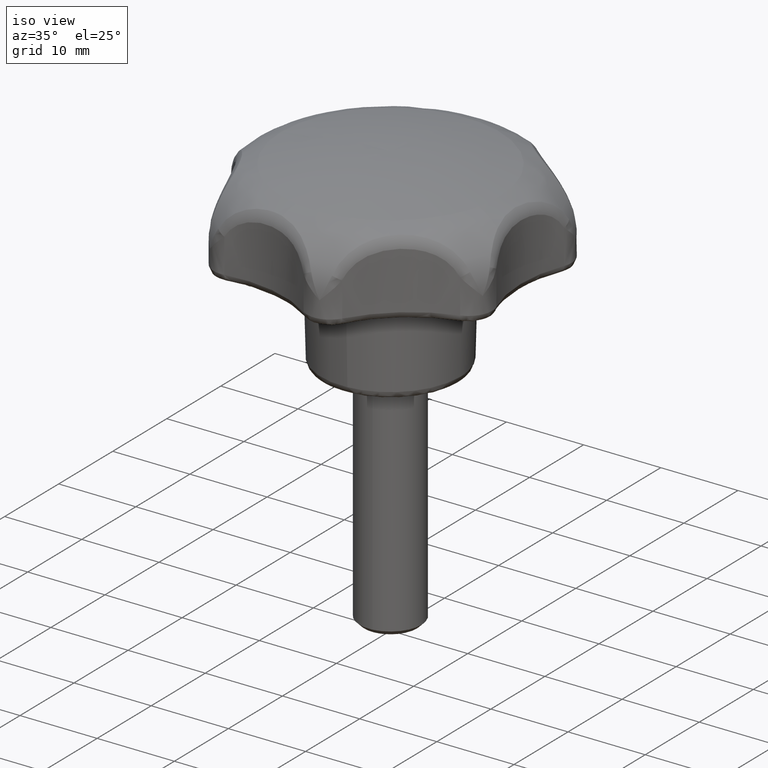
[diagram: clean part render]
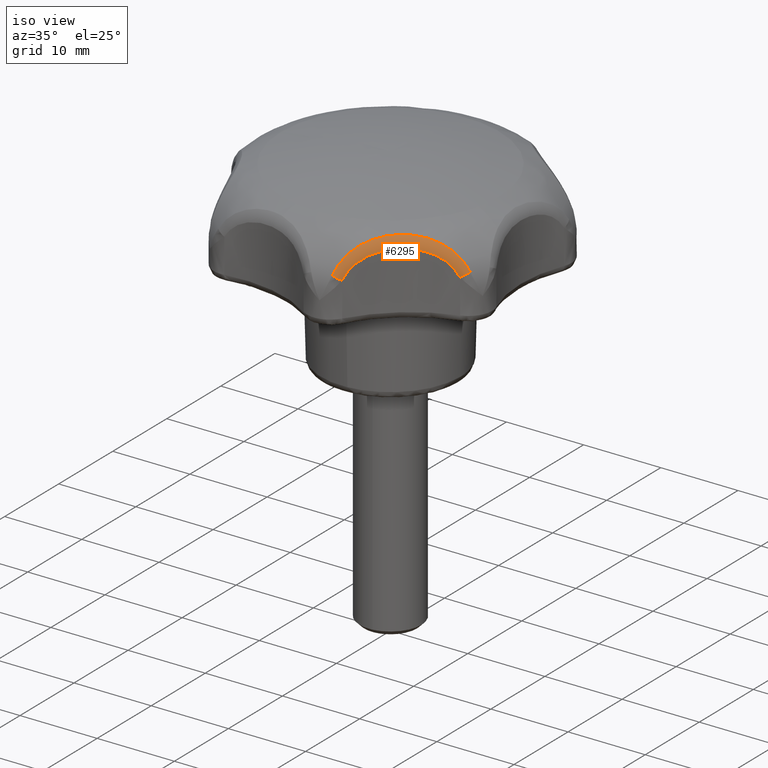
[diagram: same view with one face highlighted and labeled with its STEP entity id]
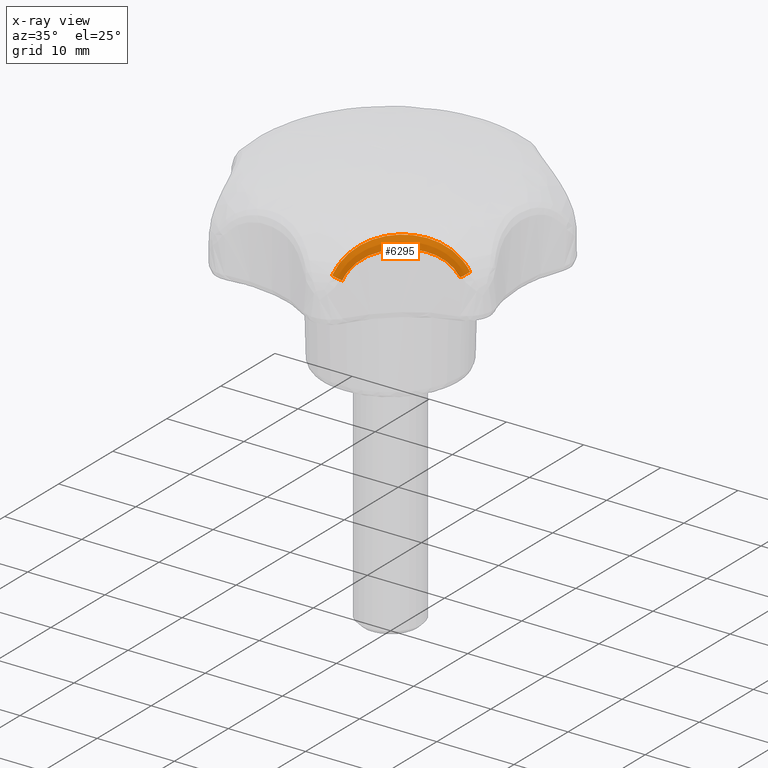
[diagram: x-ray of the same camera — body ghosted, the highlighted face saturated]
A machine part, iso view. The second image highlights one B-rep face of the part: STEP entity #6295.
The next image is the same camera in x-ray: the body ghosted, the highlighted face saturated — about 0% of this face is hidden behind the body in this view.
In plain terms, the highlighted face is a freeform B-spline surface patch.
Its self-contained STEP definition (entity closure, byte-faithful):
#2255=CARTESIAN_POINT('',(5.475528950280280,-18.650227260420351,19.019535067539351));
#2256=VERTEX_POINT('',#2255);
#2276=CARTESIAN_POINT('',(16.964206244606348,-9.488312651027531,19.019536550120652));
#2277=VERTEX_POINT('',#2276);
#2278=CARTESIAN_POINT('',(5.475528950280280,-18.650227260420351,19.019535067539351));
#2279=CARTESIAN_POINT('',(5.553764368837355,-18.486367246193801,19.348598608730040));
#2280=CARTESIAN_POINT('',(5.645782987676067,-18.298527507510659,19.655301316713281));
#2281=CARTESIAN_POINT('',(5.806042949582052,-17.985451188917072,20.084583846060330));
#2282=CARTESIAN_POINT('',(5.863190624353697,-17.875843733898989,20.222520132009510));
#2283=CARTESIAN_POINT('',(5.954892362057599,-17.703943294996620,20.421819700926068));
#2284=CARTESIAN_POINT('',(5.986457630201150,-17.645393901603128,20.486984178750721));
#2285=CARTESIAN_POINT('',(6.051665254439676,-17.525850036928119,20.614784092157048));
#2286=CARTESIAN_POINT('',(6.085376495384684,-17.464732549285859,20.677539449137619));
#2287=CARTESIAN_POINT('',(6.258517511463269,-17.154650802851510,20.983529884550340));
#2288=CARTESIAN_POINT('',(6.410375038517116,-16.894486155751260,21.201532610416130));
#2289=CARTESIAN_POINT('',(6.659961517573313,-16.490910846522912,21.493273388846550));
#2290=CARTESIAN_POINT('',(6.746802500416457,-16.354152129686941,21.584617130383059));
#2291=CARTESIAN_POINT('',(6.882862325939552,-16.146195980481370,21.713213501154360));
#2292=CARTESIAN_POINT('',(6.929182731350588,-16.076407304135270,21.754674781924241));
#2293=CARTESIAN_POINT('',(7.023821919152435,-15.935976477155471,21.834851200597861));
#2294=CARTESIAN_POINT('',(7.072039160591609,-15.865489199285220,21.873472534174599));
#2295=CARTESIAN_POINT('',(7.316362197867349,-15.513831292957960,22.058557628312069));
#2296=CARTESIAN_POINT('',(7.523381252451058,-15.233187798347791,22.182154045349790));
#2297=CARTESIAN_POINT('',(7.962360146367631,-14.677811323559240,22.388961330986859));
#2298=CARTESIAN_POINT('',(8.194322771701996,-14.403073386781850,22.472151980560501));
#2299=CARTESIAN_POINT('',(8.562850431148913,-13.998396926638620,22.570745749911751));
#2300=CARTESIAN_POINT('',(8.689128597816852,-13.864739501433920,22.599223288144380));
#2301=CARTESIAN_POINT('',(8.883978706769188,-13.666443051784990,22.635665447123490));
#2302=CARTESIAN_POINT('',(8.949743543915746,-13.600806120915880,22.646744490957129));
#2303=CARTESIAN_POINT('',(9.082231925450635,-13.471165046451061,22.666732583631489));
#2304=CARTESIAN_POINT('',(9.149053302701592,-13.407060733247580,22.675660489147099));
#2305=CARTESIAN_POINT('',(9.486067019371294,-13.090147142948700,22.715166197984988));
#2306=CARTESIAN_POINT('',(10.043928532848620,-12.606222556225219,22.745866945159982));
#2307=CARTESIAN_POINT('',(10.639596888890440,-12.169248210545360,22.715955980434479));
#2308=CARTESIAN_POINT('',(11.023570710443311,-11.910639075813840,22.676932180754051));
#2309=CARTESIAN_POINT('',(11.100948407081550,-11.859640796325630,22.668100002744289));
#2310=CARTESIAN_POINT('',(11.256862082448530,-11.759081557024761,22.648301456384662));
#2311=CARTESIAN_POINT('',(11.335482695351059,-11.709469404924301,22.637321149434030));
#2312=CARTESIAN_POINT('',(11.572200571873189,-11.563300887417009,22.601170356012030));
#2313=CARTESIAN_POINT('',(11.731259153165171,-11.469334599923510,22.572793869926372));
#2314=CARTESIAN_POINT('',(12.051572325284249,-11.288050303412970,22.506865905596801));
#2315=CARTESIAN_POINT('',(12.212980460266380,-11.200668548905149,22.469253041928880));
#2316=CARTESIAN_POINT('',(12.534878191112270,-11.033626281870699,22.384804153259989));
#2317=CARTESIAN_POINT('',(12.695689406051249,-10.953775003477251,22.337911105305420));
#2318=CARTESIAN_POINT('',(13.177006987996499,-10.724486965632630,22.182261920934341));
#2319=CARTESIAN_POINT('',(13.496419560760780,-10.585293150086899,22.058620773472288));
#2320=CARTESIAN_POINT('',(13.970169009188441,-10.394447752793100,21.838056616070752));
#2321=CARTESIAN_POINT('',(14.127185635424411,-10.333829278389420,21.758665100310889));
#2322=CARTESIAN_POINT('',(14.360902081057381,-10.247128583773311,21.629888475643011));
#2323=CARTESIAN_POINT('',(14.438534892362870,-10.218925584026611,21.585319192346660));
#2324=CARTESIAN_POINT('',(14.591834193951470,-10.164332777305010,21.493577804721848));
#2325=CARTESIAN_POINT('',(14.667661493408930,-10.137882343462021,21.446320139735640));
#2326=CARTESIAN_POINT('',(15.042519852625970,-10.009650204966800,21.202969586861531));
#2327=CARTESIAN_POINT('',(15.328769414925780,-9.919872048818952,20.985780111687351));
#2328=CARTESIAN_POINT('',(15.733968885523030,-9.801101163240286,20.622832016367671));
#2329=CARTESIAN_POINT('',(15.864996597087520,-9.764171460753692,20.495638570819199));
#2330=CARTESIAN_POINT('',(16.054874254794811,-9.712449041084508,20.294889513418120));
#2331=CARTESIAN_POINT('',(16.116944853062002,-9.695852036613067,20.226414057097639));
#2332=CARTESIAN_POINT('',(16.237737578438139,-9.664093304638721,20.087260132064021));
#2333=CARTESIAN_POINT('',(16.296584968527370,-9.648897284659185,20.016451202407278));
#2334=CARTESIAN_POINT('',(16.582985767823079,-9.576126753402635,19.656217962753921));
#2335=CARTESIAN_POINT('',(16.787179817652589,-9.528094325210084,19.348350154545201));
#2336=CARTESIAN_POINT('',(16.964206244606348,-9.488312651027531,19.019536550120652));
#2337=B_SPLINE_CURVE_WITH_KNOTS('',3,(#2278,#2279,#2280,#2281,#2282,#2283,#2284,#2285,#2286,#2287,#2288,#2289,#2290,#2291,#2292,#2293,#2294,#2295,#2296,#2297,#2298,#2299,#2300,#2301,#2302,#2303,#2304,#2305,#2306,#2307,#2308,#2309,#2310,#2311,#2312,#2313,#2314,#2315,#2316,#2317,#2318,#2319,#2320,#2321,#2322,#2323,#2324,#2325,#2326,#2327,#2328,#2329,#2330,#2331,#2332,#2333,#2334,#2335,#2336),.UNSPECIFIED.,.F.,.U.,(4,2,2,2,2,2,2,2,2,2,2,2,2,2,1,2,2,2,2,2,2,2,2,2,2,2,2,2,2,4),(0.0,0.062499999999999,0.093749999999998,0.109374999999998,0.124999999999998,0.187499999999996,0.218749999999996,0.234374999999996,0.249999999999996,0.312499999999997,0.374999999999998,0.406249999999998,0.421874999999999,0.437499999999999,0.500000000000000,0.562500000000001,0.578125000000001,0.593750000000002,0.625000000000001,0.656250000000001,0.687500000000001,0.750000000000001,0.781250000000002,0.796875000000002,0.812500000000001,0.875000000000000,0.906250000000000,0.921874999999999,0.937499999999999,1.0),.UNSPECIFIED.);
#2338=EDGE_CURVE('',#2256,#2277,#2337,.T.);
#5977=CARTESIAN_POINT('',(16.190066107806100,-10.246012305419599,18.449535524119650));
#5978=VERTEX_POINT('',#5977);
#5979=CARTESIAN_POINT('',(16.964206244606348,-9.488312651027531,19.019536550120652));
#5980=CARTESIAN_POINT('',(16.741686095584580,-10.078104585534534,18.791458855199735));
#5981=CARTESIAN_POINT('',(16.190066107806100,-10.246012305419599,18.449535524119650));
#5989=(BOUNDED_CURVE()B_SPLINE_CURVE(2,(#5979,#5980,#5981),.UNSPECIFIED.,.F.,.U.)CURVE()GEOMETRIC_REPRESENTATION_ITEM()QUASI_UNIFORM_CURVE()RATIONAL_B_SPLINE_CURVE((1.0,0.912974206322203,1.0))REPRESENTATION_ITEM(''));
#5990=EDGE_CURVE('',#2277,#5978,#5989,.T.);
#6021=CARTESIAN_POINT('',(6.370515621477008,-18.091989861584292,18.377181866971647));
#6022=CARTESIAN_POINT('',(6.376753883709564,-18.081099639100966,18.400210466862749));
#6023=CARTESIAN_POINT('',(6.382992134689126,-18.070209436262182,18.423239025213306));
#6024=CARTESIAN_POINT('',(6.467207355992376,-17.923193735048553,18.734120255247419));
#6025=CARTESIAN_POINT('',(6.559595859145257,-17.766239104455973,18.997868889494008));
#6026=CARTESIAN_POINT('',(6.720372880250509,-17.505274068921189,19.361526474679646));
#6027=CARTESIAN_POINT('',(6.777689791865439,-17.413993097165513,19.477385390131708));
#6028=CARTESIAN_POINT('',(6.900105121572643,-17.223500588000785,19.698749546750705));
#6029=CARTESIAN_POINT('',(6.965563768210648,-17.123763041109761,19.804727798947233));
#6030=CARTESIAN_POINT('',(7.170793724968758,-16.818608667425107,20.102679538922626));
#6031=CARTESIAN_POINT('',(7.319561559139206,-16.606942969091502,20.275668088406480));
#6032=CARTESIAN_POINT('',(7.641083456239821,-16.172920205569532,20.579052734696340));
#6033=CARTESIAN_POINT('',(7.815169650458763,-15.949002514605620,20.710017821758708));
#6034=CARTESIAN_POINT('',(8.360916789893720,-15.283733012236597,21.040960117754942));
#6035=CARTESIAN_POINT('',(8.757201096920378,-14.846623661231693,21.183646527740894));
#6036=CARTESIAN_POINT('',(9.398931184320500,-14.211819561250550,21.322782795100860));
#6037=CARTESIAN_POINT('',(9.621412787347603,-14.003135244226861,21.356265196873856));
#6038=CARTESIAN_POINT('',(10.073908124516651,-13.601006646254852,21.399985746847104));
#6039=CARTESIAN_POINT('',(10.304856210555295,-13.406571432269505,21.410493664492602));
#6040=CARTESIAN_POINT('',(11.011645867048799,-12.842867841851314,21.410553411751632));
#6041=CARTESIAN_POINT('',(11.501427807069453,-12.493136352020764,21.370187271972195));
#6042=CARTESIAN_POINT('',(12.263516890024567,-12.007866739771158,21.231820302450188));
#6043=CARTESIAN_POINT('',(12.522428583192411,-11.852631248933104,21.172061553441203));
#6044=CARTESIAN_POINT('',(13.037293495414740,-11.561822202454602,21.021947219716861));
#6045=CARTESIAN_POINT('',(13.294555968935500,-11.425384532250549,20.931421625965452));
#6046=CARTESIAN_POINT('',(13.806171109276056,-11.170104546930373,20.711859596410491));
#6047=CARTESIAN_POINT('',(14.062338357565864,-11.050491288458096,20.581725197595613));
#6048=CARTESIAN_POINT('',(14.559185378572266,-10.832521255471006,20.277543594169501));
#6049=CARTESIAN_POINT('',(14.798258264009064,-10.734741725004657,20.104819560260211));
#6050=CARTESIAN_POINT('',(15.138904289941596,-10.603417286280537,19.809776865487805));
#6051=CARTESIAN_POINT('',(15.249448445530422,-10.562202369998305,19.705419828930811));
#6052=CARTESIAN_POINT('',(15.463670107087999,-10.484694088822007,19.483524083307195));
#6053=CARTESIAN_POINT('',(15.567293976765937,-10.448433224500290,19.365897512552593));
#6054=CARTESIAN_POINT('',(15.860510836992216,-10.348677049134253,18.999103163296368));
#6055=CARTESIAN_POINT('',(16.034794562887964,-10.293328540316177,18.734000805836683));
#6056=CARTESIAN_POINT('',(16.196796198562055,-10.243959482970419,18.423249648913711));
#6057=CARTESIAN_POINT('',(16.208796445815857,-10.240302477333584,18.400230802826353));
#6058=CARTESIAN_POINT('',(16.220796714708790,-10.236645465102358,18.377211915230866));
#6059=CARTESIAN_POINT('',(6.369141233669317,-18.094403229338454,18.378765025729287));
#6060=CARTESIAN_POINT('',(6.375381715289018,-18.083505037614394,18.401810088445284));
#6061=CARTESIAN_POINT('',(6.381622191277655,-18.072606855724274,18.424855130366698));
#6062=CARTESIAN_POINT('',(6.465868000414966,-17.925482477210267,18.735960918900712));
#6063=CARTESIAN_POINT('',(6.558290741732964,-17.768414331713760,18.999901738178760));
#6064=CARTESIAN_POINT('',(6.719128367642180,-17.507267727019862,19.363827745259108));
#6065=CARTESIAN_POINT('',(6.776466979148293,-17.415924450829106,19.479772635668535));
#6066=CARTESIAN_POINT('',(6.898928790551757,-17.225304793327123,19.701302347541368));
#6067=CARTESIAN_POINT('',(6.964412340892377,-17.125502103907554,19.807360523983885));
#6068=CARTESIAN_POINT('',(7.169720157695134,-16.820153697900700,20.105538812450259));
#6069=CARTESIAN_POINT('',(7.318544285199013,-16.608359871149492,20.278662114707082));
#6070=CARTESIAN_POINT('',(7.640185313088129,-16.174090237756072,20.582288895567292));
#6071=CARTESIAN_POINT('',(7.814334685711303,-15.950053137662502,20.713361935652451));
#6072=CARTESIAN_POINT('',(8.360272039733095,-15.284454891591100,21.044583596963793));
#6073=CARTESIAN_POINT('',(8.756685049950294,-14.847161530650773,21.187403805711867));
#6074=CARTESIAN_POINT('',(9.398606932386407,-14.212126797088622,21.326674322630961));
#6075=CARTESIAN_POINT('',(9.621152539098848,-14.003372799937745,21.360190191832373));
#6076=CARTESIAN_POINT('',(10.073776044529575,-13.601117788417154,21.403954669681809));
#6077=CARTESIAN_POINT('',(10.304788768989926,-13.406625226118559,21.414473437948917));
#6078=CARTESIAN_POINT('',(11.011780181940573,-12.842760707355097,21.414533246190341));
#6079=CARTESIAN_POINT('',(11.501708452897262,-12.492934997149181,21.374124031956693));
#6080=CARTESIAN_POINT('',(12.264063421120209,-12.007530203851944,21.235624312894039));
#6081=CARTESIAN_POINT('',(12.523072400004947,-11.852250570719155,21.175809112035978));
#6082=CARTESIAN_POINT('',(13.038146928341733,-11.561357509185573,21.025558867254862));
#6083=CARTESIAN_POINT('',(13.295522358109155,-11.424879743668193,20.934953422679303));
#6084=CARTESIAN_POINT('',(13.807379264951543,-11.169524856643454,20.715205250667815));
#6085=CARTESIAN_POINT('',(14.063676408081909,-11.049876644294415,20.584963521105657));
#6086=CARTESIAN_POINT('',(14.560791622614783,-10.831845070111029,20.280539081229836));
#6087=CARTESIAN_POINT('',(14.800001715853902,-10.734039213024797,20.107680511281195));
#6088=CARTESIAN_POINT('',(15.140852579896817,-10.602682212171359,19.812413416785365));
#6089=CARTESIAN_POINT('',(15.251464940337538,-10.561457582749677,19.707977643677115));
#6090=CARTESIAN_POINT('',(15.465821592877159,-10.483932112447995,19.485915893891285));
#6091=CARTESIAN_POINT('',(15.569512200712868,-10.447663794636888,19.368202014865702));
#6092=CARTESIAN_POINT('',(15.862921483589123,-10.347888700869323,19.001136894695019));
#6093=CARTESIAN_POINT('',(16.037323999309873,-10.292532056215860,18.735841383031033));
#6094=CARTESIAN_POINT('',(16.199438347055573,-10.243157363207706,18.424865761647457));
#6095=CARTESIAN_POINT('',(16.211446864979617,-10.239499964006304,18.401830438893807));
#6096=CARTESIAN_POINT('',(16.223455393735588,-10.235842561505841,18.378795095361777));
#6097=CARTESIAN_POINT('',(6.080005344532129,-18.602113809651069,18.711820959781605));
#6098=CARTESIAN_POINT('',(6.086685221293238,-18.589587313733738,18.738361444447367));
#6099=CARTESIAN_POINT('',(6.093366359156527,-18.577058452923783,18.764906939723971));
#6100=CARTESIAN_POINT('',(6.183685261122182,-18.407687161028537,19.123761978278459));
#6101=CARTESIAN_POINT('',(6.282903806177868,-18.227399219217673,19.428843965497485));
#6102=CARTESIAN_POINT('',(6.455775407361696,-17.929148356083214,19.850802658537489));
#6103=CARTESIAN_POINT('',(6.517432770239534,-17.825052243950768,19.985474163324923));
#6104=CARTESIAN_POINT('',(6.649162182986850,-17.608385946259588,20.243330383830305));
#6105=CARTESIAN_POINT('',(6.719622087158758,-17.495222030449341,20.367070563433405));
#6106=CARTESIAN_POINT('',(6.940551094005150,-17.149963665249192,20.715893704273196));
#6107=CARTESIAN_POINT('',(7.100726398457810,-16.911745812536697,20.919740644180191));
#6108=CARTESIAN_POINT('',(7.446600441171325,-16.426277798890407,21.279807756042949));
#6109=CARTESIAN_POINT('',(7.633722331044115,-16.177314833134286,21.436731738336839));
#6110=CARTESIAN_POINT('',(8.219308150858650,-15.442281794671098,21.836797002615359));
#6111=CARTESIAN_POINT('',(8.643064011603387,-14.965587343484906,22.014665371367443));
#6112=CARTESIAN_POINT('',(9.326663064677019,-14.280295193834512,22.190112632074310));
#6113=CARTESIAN_POINT('',(9.563289177236735,-14.056190723313366,22.232870045319483));
#6114=CARTESIAN_POINT('',(10.044327337759171,-13.625898173542380,22.288870298011794));
#6115=CARTESIAN_POINT('',(10.289741075499677,-13.418627814546628,22.302448246883220));
#6116=CARTESIAN_POINT('',(11.041748902401201,-12.818856554015044,22.302525219362472));
#6117=CARTESIAN_POINT('',(11.564142084501100,-12.448140759610764,22.249911940532876));
#6118=CARTESIAN_POINT('',(12.384715936897880,-11.933236342757374,22.075399823859879));
#6119=CARTESIAN_POINT('',(12.664765058169831,-11.768470049627574,22.000580271457284));
#6120=CARTESIAN_POINT('',(13.224735071889805,-11.459760474847950,21.815182267005383));
#6121=CARTESIAN_POINT('',(13.506060296174681,-11.314906297995469,21.704392089910662));
#6122=CARTESIAN_POINT('',(14.068731266731684,-11.044124446769272,21.438947608674734));
#6123=CARTESIAN_POINT('',(14.352097335760446,-10.917388193552396,21.282994170690554));
#6124=CARTESIAN_POINT('',(14.904730968801182,-10.687055894583233,20.921952112978786));
#6125=CARTESIAN_POINT('',(15.172182097230964,-10.584071677438324,20.718417105609021));
#6126=CARTESIAN_POINT('',(15.555080287298146,-10.446397434230144,20.372972997001490));
#6127=CARTESIAN_POINT('',(15.679653499265266,-10.403307223240041,20.251111703017362));
#6128=CARTESIAN_POINT('',(15.921607614258091,-10.322509628670812,19.992614025716890));
#6129=CARTESIAN_POINT('',(16.038930933934139,-10.284837677696778,19.855878905209078));
#6130=CARTESIAN_POINT('',(16.371583485135325,-10.181542125274948,19.430267355034903));
#6131=CARTESIAN_POINT('',(16.570239238982904,-10.124724511604560,19.123624063857548));
#6132=CARTESIAN_POINT('',(16.755384479677577,-10.074379801661587,18.764919178939067));
#6133=CARTESIAN_POINT('',(16.769080143791374,-10.070655675485302,18.738384866734279));
#6134=CARTESIAN_POINT('',(16.782773223699710,-10.066932252006394,18.711855561231914));
#6135=CARTESIAN_POINT('',(5.452084392744707,-18.693711626753966,18.934075237527459));
#6136=CARTESIAN_POINT('',(5.458939122807954,-18.679348579355494,18.962912516603158));
#6137=CARTESIAN_POINT('',(5.465793846902568,-18.664985544463377,18.991749770569324));
#6138=CARTESIAN_POINT('',(5.558331965976990,-18.471085948393679,19.381049938521610));
#6139=CARTESIAN_POINT('',(5.659732821859597,-18.264525848439281,19.711331268252039));
#6140=CARTESIAN_POINT('',(5.835882552784827,-17.922539621029497,20.166723660585546));
#6141=CARTESIAN_POINT('',(5.898635373123300,-17.803140392793050,20.311808358755947));
#6142=CARTESIAN_POINT('',(6.032558821737695,-17.554576702599153,20.589012328732107));
#6143=CARTESIAN_POINT('',(6.104122584771935,-17.424730925462313,20.721723881089545));
#6144=CARTESIAN_POINT('',(6.328352153687392,-17.028599634002806,21.094833776964503));
#6145=CARTESIAN_POINT('',(6.490703758677367,-16.755301255951277,21.311459100162331));
#6146=CARTESIAN_POINT('',(6.841471092563545,-16.199112257584744,21.691373250315902));
#6147=CARTESIAN_POINT('',(7.031337788674256,-15.914274451862861,21.855374874712982));
#6148=CARTESIAN_POINT('',(7.627349603467974,-15.075949802336201,22.269795776002404));
#6149=CARTESIAN_POINT('',(8.060979650694771,-14.535786739939512,22.448479093594234));
#6150=CARTESIAN_POINT('',(8.771319553057023,-13.770661329421104,22.622715873577778));
#6151=CARTESIAN_POINT('',(9.018913619836724,-13.522465679130732,22.664645210510894));
#6152=CARTESIAN_POINT('',(9.526432142053050,-13.050646883689089,22.719395309719957));
#6153=CARTESIAN_POINT('',(9.787387930038245,-12.825807461672847,22.732554237482749));
#6154=CARTESIAN_POINT('',(10.593499633375799,-12.182860904263279,22.732629057535455));
#6155=CARTESIAN_POINT('',(11.162060039892602,-11.796293168045546,22.682077912571657));
#6156=CARTESIAN_POINT('',(12.066334066523517,-11.272910643107759,22.508806554096285));
#6157=CARTESIAN_POINT('',(12.376717741119771,-11.107836892763487,22.433972491101962));
#6158=CARTESIAN_POINT('',(13.000127666269158,-10.802111776509262,22.245990384901035));
#6159=CARTESIAN_POINT('',(13.314693321850761,-10.660517882839102,22.132628774483511));
#6160=CARTESIAN_POINT('',(13.945795724455037,-10.398237657197638,21.857681251686753));
#6161=CARTESIAN_POINT('',(14.264610920222761,-10.276779434030537,21.694719839635031));
#6162=CARTESIAN_POINT('',(14.887571320058788,-10.057453307099628,21.313807696684933));
#6163=CARTESIAN_POINT('',(15.189651096685250,-9.960144378570440,21.097513643489673));
#6164=CARTESIAN_POINT('',(15.622501708579291,-9.830513151847081,20.728046593580860));
#6165=CARTESIAN_POINT('',(15.763394198053318,-9.790030046747170,20.597365206066854));
#6166=CARTESIAN_POINT('',(16.037116154372182,-9.714223093385535,20.319495555341401));
#6167=CARTESIAN_POINT('',(16.169880576452957,-9.678932939954665,20.172197303328716));
#6168=CARTESIAN_POINT('',(16.546350116143650,-9.582243933363980,19.712876871931506));
#6169=CARTESIAN_POINT('',(16.771212524263866,-9.529158860612833,19.380899499302902));
#6170=CARTESIAN_POINT('',(16.980754221025947,-9.482107370288087,18.991763142657351));
#6171=CARTESIAN_POINT('',(16.996275886318902,-9.478622061656715,18.962938119406552));
#6172=CARTESIAN_POINT('',(17.011797565122230,-9.475136749991664,18.934113071065873));
#6173=CARTESIAN_POINT('',(5.449203609993669,-18.694131860241615,18.935094898183543));
#6174=CARTESIAN_POINT('',(5.456059416563434,-18.679760347867880,18.963942616393922));
#6175=CARTESIAN_POINT('',(5.462915211199293,-18.665388860510596,18.992790284389084));
#6176=CARTESIAN_POINT('',(5.555467198731550,-18.471376380651481,19.382228584459607));
#6177=CARTESIAN_POINT('',(5.656882380264815,-18.264695669067780,19.712623391245643));
#6178=CARTESIAN_POINT('',(5.833055220775215,-17.922509478581471,20.168164576632588));
#6179=CARTESIAN_POINT('',(5.895816013102486,-17.803040558182524,20.313295200149131));
#6180=CARTESIAN_POINT('',(6.029755966755077,-17.554332105316387,20.590583673331508));
#6181=CARTESIAN_POINT('',(6.101328305173364,-17.424410905940302,20.723333956363767));
#6182=CARTESIAN_POINT('',(6.325584153128212,-17.028050897825352,21.096547119252502));
#6183=CARTESIAN_POINT('',(6.487954022092061,-16.754596066843913,21.313224809333281));
#6184=CARTESIAN_POINT('',(6.838761374818544,-16.198095029615640,21.693216205587571));
#6185=CARTESIAN_POINT('',(7.028649990235025,-15.913100783754684,21.857242831623235));
#6186=CARTESIAN_POINT('',(7.624736367887928,-15.074332608360882,22.271707274376265));
#6187=CARTESIAN_POINT('',(8.058428000948634,-14.533902647745006,22.450380777866336));
#6188=CARTESIAN_POINT('',(8.768903779625342,-13.768444395354578,22.624597720390433));
#6189=CARTESIAN_POINT('',(9.016550483602202,-13.520148776812043,22.666519548041606));
#6190=CARTESIAN_POINT('',(9.524190227575238,-13.048156680640686,22.721259007751563));
#6191=CARTESIAN_POINT('',(9.785214862127521,-12.823243052755940,22.734414780279824));
#6192=CARTESIAN_POINT('',(10.591560614560214,-12.180109739639674,22.734489583569761));
#6193=CARTESIAN_POINT('',(11.160315581007380,-11.793465085224728,22.683952892516476));
#6194=CARTESIAN_POINT('',(12.064942090227927,-11.270023676836075,22.510701422965976));
#6195=CARTESIAN_POINT('',(12.375454508323058,-11.104939683100529,22.435873134618788));
#6196=CARTESIAN_POINT('',(12.999136119732034,-10.799208536129987,22.247892220222454));
#6197=CARTESIAN_POINT('',(13.313845524861810,-10.657618800957620,22.134525955400029));
#6198=CARTESIAN_POINT('',(13.945247224331588,-10.395355911387997,21.859549510862482));
#6199=CARTESIAN_POINT('',(14.264219189111740,-10.273911030066827,21.696563391605274));
#6200=CARTESIAN_POINT('',(14.887493973886418,-10.054615408084715,21.315573964163978));
#6201=CARTESIAN_POINT('',(15.189730078088003,-9.957323458378774,21.099227626962154));
#6202=CARTESIAN_POINT('',(15.622807772477923,-9.827717305348996,20.729658473117226));
#6203=CARTESIAN_POINT('',(15.763774823838816,-9.787242523948727,20.598939028753875));
#6204=CARTESIAN_POINT('',(16.037642402807943,-9.711451784551022,20.320984803612330));
#6205=CARTESIAN_POINT('',(16.170477815753536,-9.676169510327616,20.173639978354167));
#6206=CARTESIAN_POINT('',(16.547149511164204,-9.579502700740315,19.714169547994810));
#6207=CARTESIAN_POINT('',(16.772133190919252,-9.526430550553144,19.382078088359311));
#6208=CARTESIAN_POINT('',(16.981787977837421,-9.479390653942184,18.992803661633999));
#6209=CARTESIAN_POINT('',(16.997318118127019,-9.475906182138251,18.963968229125811));
#6210=CARTESIAN_POINT('',(17.012848285440285,-9.472421704271067,18.935132746441731));
#6218=(BOUNDED_SURFACE()B_SPLINE_SURFACE(3,2,((#6021,#6059,#6097,#6135,#6173),(#6022,#6060,#6098,#6136,#6174),(#6023,#6061,#6099,#6137,#6175),(#6024,#6062,#6100,#6138,#6176),(#6025,#6063,#6101,#6139,#6177),(#6026,#6064,#6102,#6140,#6178),(#6027,#6065,#6103,#6141,#6179),(#6028,#6066,#6104,#6142,#6180),(#6029,#6067,#6105,#6143,#6181),(#6030,#6068,#6106,#6144,#6182),(#6031,#6069,#6107,#6145,#6183),(#6032,#6070,#6108,#6146,#6184),(#6033,#6071,#6109,#6147,#6185),(#6034,#6072,#6110,#6148,#6186),(#6035,#6073,#6111,#6149,#6187),(#6036,#6074,#6112,#6150,#6188),(#6037,#6075,#6113,#6151,#6189),(#6038,#6076,#6114,#6152,#6190),(#6039,#6077,#6115,#6153,#6191),(#6040,#6078,#6116,#6154,#6192),(#6041,#6079,#6117,#6155,#6193),(#6042,#6080,#6118,#6156,#6194),(#6043,#6081,#6119,#6157,#6195),(#6044,#6082,#6120,#6158,#6196),(#6045,#6083,#6121,#6159,#6197),(#6046,#6084,#6122,#6160,#6198),(#6047,#6085,#6123,#6161,#6199),(#6048,#6086,#6124,#6162,#6200),(#6049,#6087,#6125,#6163,#6201),(#6050,#6088,#6126,#6164,#6202),(#6051,#6089,#6127,#6165,#6203),(#6052,#6090,#6128,#6166,#6204),(#6053,#6091,#6129,#6167,#6205),(#6054,#6092,#6130,#6168,#6206),(#6055,#6093,#6131,#6169,#6207),(#6056,#6094,#6132,#6170,#6208),(#6057,#6095,#6133,#6171,#6209),(#6058,#6096,#6134,#6172,#6210)),.UNSPECIFIED.,.F.,.F.,.U.)B_SPLINE_SURFACE_WITH_KNOTS((4,2,2,2,2,2,2,2,2,2,2,2,2,2,2,2,2,2,4),(3,1,1,3),(0.0,0.098851488039571,1.334494049826285,1.952315330719643,2.570136611613000,3.805779173399715,5.041421735186430,7.512706858759858,8.748349420546573,9.983991982333286,12.455277105906720,13.690919667693430,14.926562229480140,16.162204791266859,17.397847353053571,18.015668633946930,18.633489914840279,19.869132476627001,19.967983607653242),(0.0,0.008563553469501,1.643742134427163,1.652005541069167),.UNSPECIFIED.)GEOMETRIC_REPRESENTATION_ITEM()RATIONAL_B_SPLINE_SURFACE(((1.000908813223337,1.000454406611669,0.913232753074737,1.000438479963534,1.000876959927069),(1.000909715978842,1.000454857989421,0.913146564177209,1.000438915520798,1.000877831041596),(1.000910618734346,1.000455309367173,0.913060375279680,1.000439351078062,1.000878702156124),(1.000922805924172,1.000461402962086,0.911896826068701,1.000445231096544,1.000890462193089),(1.000937155733156,1.000468577866578,0.910526804828393,1.000452154525428,1.000904309050855),(1.000964202869097,1.000482101434549,0.907944529986234,1.000465204101377,1.000930408202753),(1.000974138273801,1.000487069136900,0.906995965758652,1.000469997689080,1.000939995378160),(1.000995948131126,1.000497974065563,0.904913710321156,1.000480520407279,1.000961040814558),(1.001007891328836,1.000503945664418,0.903773455802240,1.000486282705584,1.000972565411168),(1.001046015386606,1.000523007693303,0.900133632514753,1.000504676623092,1.001009353246184),(1.001074552433113,1.000537276216557,0.897409111241010,1.000518445044139,1.001036890088279),(1.001135896905633,1.000567948452817,0.891552362177512,1.000548042239012,1.001096084478024),(1.001168932923075,1.000584466461537,0.888398310047625,1.000563981302563,1.001127962605126),(1.001266858628867,1.000633429314434,0.879049035987040,1.000611228040179,1.001222456080358),(1.001330775640791,1.000665387820396,0.872946678523620,1.000642066421859,1.001284132843719),(1.001400230153741,1.000700115076870,0.866315638481034,1.000675576511197,1.001351153022395),(1.001418942356120,1.000709471178060,0.864529125870188,1.000684604687292,1.001369209374583),(1.001443980367463,1.000721990183731,0.862138668450666,1.000696684910179,1.001393369820357),(1.001450429789306,1.000725214894653,0.861522921932874,1.000699796597137,1.001399593194274),(1.001450465619894,1.000725232809947,0.861519501074390,1.000699813884512,1.001399627769023),(1.001423986183025,1.000711993091512,0.864047575906767,1.000687038209362,1.001374076418724),(1.001354778088128,1.000677389044064,0.870655089645439,1.000653647010657,1.001307294021314),(1.001326925901153,1.000663462950576,0.873314225233115,1.000640209017441,1.001280418034883),(1.001266821562838,1.000633410781419,0.879052574797068,1.000611210156734,1.001222420313468),(1.001234490826664,1.000617245413332,0.882139291513829,1.000595611373998,1.001191222747996),(1.001169434282257,1.000584717141129,0.888350443715062,1.000564223196002,1.001128446392004),(1.001136502048215,1.000568251024107,0.891494587318590,1.000548334205381,1.001096668410761),(1.001074867849324,1.000537433924662,0.897378997466725,1.000518597224681,1.001037194449362),(1.001046376558143,1.000523188279072,0.900099150336069,1.000504850879450,1.001009701758901),(1.001008495049078,1.000504247524539,0.903715816738497,1.000486573985709,1.000973147971419),(1.000996664271244,1.000498332135622,0.904845338179521,1.000480865927222,1.000961731854443),(1.000974687439412,1.000487343719706,0.906943535196493,1.000470262647942,1.000940525295883),(1.000964552615458,1.000482276307729,0.907911138604980,1.000465372845369,1.000930745690738),(1.000937199223323,1.000468599611661,0.910522652685852,1.000452175508360,1.000904351016721),(1.000922801949487,1.000461400974744,0.911897205544347,1.000445229178857,1.000890458357714),(1.000910619094185,1.000455309547093,0.913060340924715,1.000439351251675,1.000878702503351),(1.000909716662775,1.000454858331387,0.913146498879980,1.000438915850779,1.000877831701558),(1.000908814231364,1.000454407115682,0.913232656835244,1.000438480449883,1.000876960899765)))REPRESENTATION_ITEM('')SURFACE());
#6219=CARTESIAN_POINT('',(6.386493953986790,-18.064100268040299,18.449534082608402));
#6220=VERTEX_POINT('',#6219);
#6221=CARTESIAN_POINT('',(5.475528950280292,-18.650227260420341,19.019535067539390));
#6222=CARTESIAN_POINT('',(6.100049025096735,-18.564527199627808,18.791457295243859));
#6223=CARTESIAN_POINT('',(6.386493953986790,-18.064100268040299,18.449534082608402));
#6231=(BOUNDED_CURVE()B_SPLINE_CURVE(2,(#6221,#6222,#6223),.UNSPECIFIED.,.F.,.U.)CURVE()GEOMETRIC_REPRESENTATION_ITEM()QUASI_UNIFORM_CURVE()RATIONAL_B_SPLINE_CURVE((1.0,0.912974186564820,1.0))REPRESENTATION_ITEM(''));
#6232=EDGE_CURVE('',#2256,#6220,#6231,.T.);
#6233=ORIENTED_EDGE('',*,*,#6232,.T.);
#6234=CARTESIAN_POINT('',(16.190066107806100,-10.246012305419599,18.449535524119650));
#6235=CARTESIAN_POINT('',(16.046567859145711,-10.289691745783260,18.724807808375580));
#6236=CARTESIAN_POINT('',(15.880318874425640,-10.342337327973009,18.980415925193348));
#6237=CARTESIAN_POINT('',(15.600308021794950,-10.437045545801469,19.336399282675689));
#6238=CARTESIAN_POINT('',(15.501836236190121,-10.471253301248391,19.450463232971870));
#6239=CARTESIAN_POINT('',(15.346667416269330,-10.526936875560660,19.614740022130430));
#6240=CARTESIAN_POINT('',(15.293699919410630,-10.546227579948489,19.668361419918210));
#6241=CARTESIAN_POINT('',(15.185305376044299,-10.586347384694809,19.773331159397792));
#6242=CARTESIAN_POINT('',(15.129811656233469,-10.607203796020420,19.824726680669841));
#6243=CARTESIAN_POINT('',(14.849202882572360,-10.714402534102470,20.073516218460441));
#6244=CARTESIAN_POINT('',(14.612615551051469,-10.810250650238070,20.248603588773161));
#6245=CARTESIAN_POINT('',(14.243592880036889,-10.970568596918620,20.480302015022421));
#6246=CARTESIAN_POINT('',(14.118215302134470,-11.026768392109270,20.552358505547119));
#6247=CARTESIAN_POINT('',(13.927008637742039,-11.115404378866909,20.653163671481689));
#6248=CARTESIAN_POINT('',(13.862634810599729,-11.145727619101701,20.685605781774282));
#6249=CARTESIAN_POINT('',(13.733473640018930,-11.207579486990991,20.747864222879169));
#6250=CARTESIAN_POINT('',(13.668790646196269,-11.239056122556489,20.777636634220229));
#6251=CARTESIAN_POINT('',(13.344993439738740,-11.399197737347270,20.920131873496182));
#6252=CARTESIAN_POINT('',(13.084769322562099,-11.536132557477760,21.013885283653639));
#6253=CARTESIAN_POINT('',(12.564612280691030,-11.827858083285211,21.169262073661010));
#6254=CARTESIAN_POINT('',(12.304670977631000,-11.982645467112700,21.230864089029261));
#6255=CARTESIAN_POINT('',(11.981100606634920,-12.187533659259680,21.291190161893681));
#6256=CARTESIAN_POINT('',(11.916452750377580,-12.229082112949341,21.302415171791299));
#6257=CARTESIAN_POINT('',(11.787312899418771,-12.313329700958681,21.323244957147459));
#6258=CARTESIAN_POINT('',(11.722793668804581,-12.356049005713150,21.332851206121031));
#6259=CARTESIAN_POINT('',(11.530516602177460,-12.485255292885570,21.359188589888792));
#6260=CARTESIAN_POINT('',(11.403698241084800,-12.573009645228669,21.373504591369159));
#6261=CARTESIAN_POINT('',(11.027302423959600,-12.841090757587210,21.407544912898981));
#6262=CARTESIAN_POINT('',(10.781780205988779,-13.026232679219380,21.418463750973451));
#6263=CARTESIAN_POINT('',(10.301443054566350,-13.409259435899919,21.418494154328531));
#6264=CARTESIAN_POINT('',(10.066628431423609,-13.607144610822109,21.407603631796270));
#6265=CARTESIAN_POINT('',(9.607723509427455,-14.015647769201379,21.362477585037990));
#6266=CARTESIAN_POINT('',(9.383524464010069,-14.226374142505071,21.328233887926299));
#6267=CARTESIAN_POINT('',(8.946428174895706,-14.660190985125690,21.231525856844989));
#6268=CARTESIAN_POINT('',(8.736937591709596,-14.879904178396339,21.169777046046011));
#6269=CARTESIAN_POINT('',(8.336023335756998,-15.322852347720829,21.014255190408939));
#6270=CARTESIAN_POINT('',(8.144601902949628,-15.546095504074851,20.920497997054088));
#6271=CARTESIAN_POINT('',(7.916813516901867,-15.825604866211480,20.778371253442462));
#6272=CARTESIAN_POINT('',(7.871831091264053,-15.881527341227120,20.748691953584821));
#6273=CARTESIAN_POINT('',(7.783025104428927,-15.993359915176340,20.686669303917530));
#6274=CARTESIAN_POINT('',(7.739118988069017,-16.049377231932692,20.654260223221090));
#6275=CARTESIAN_POINT('',(7.609790901866405,-16.216496648069889,20.553283404435010));
#6276=CARTESIAN_POINT('',(7.526973772334226,-16.326375738708808,20.481168415440941));
#6277=CARTESIAN_POINT('',(7.288472730486002,-16.650528170258710,20.249579454736558));
#6278=CARTESIAN_POINT('',(7.142716737223078,-16.859359448069000,20.074932768990291));
#6279=CARTESIAN_POINT('',(6.976482126394306,-17.107903854039311,19.827685230627559));
#6280=CARTESIAN_POINT('',(6.944034996341320,-17.156984624129400,19.776783135167399));
#6281=CARTESIAN_POINT('',(6.880733920714616,-17.253788358612130,19.671955978771031));
#6282=CARTESIAN_POINT('',(6.849831128348766,-17.301589859281140,19.617927988281931));
#6283=CARTESIAN_POINT('',(6.760378993488009,-17.441419800307919,19.452790529136252));
#6284=CARTESIAN_POINT('',(6.704801700523911,-17.530296907900510,19.338208560742220));
#6285=CARTESIAN_POINT('',(6.549459819004535,-17.783314795487481,18.980920294925351));
#6286=CARTESIAN_POINT('',(6.460999065054562,-17.933937441809039,18.724769020287990));
#6287=CARTESIAN_POINT('',(6.386493953986790,-18.064100268040299,18.449534082608402));
#6288=B_SPLINE_CURVE_WITH_KNOTS('',3,(#6234,#6235,#6236,#6237,#6238,#6239,#6240,#6241,#6242,#6243,#6244,#6245,#6246,#6247,#6248,#6249,#6250,#6251,#6252,#6253,#6254,#6255,#6256,#6257,#6258,#6259,#6260,#6261,#6262,#6263,#6264,#6265,#6266,#6267,#6268,#6269,#6270,#6271,#6272,#6273,#6274,#6275,#6276,#6277,#6278,#6279,#6280,#6281,#6282,#6283,#6284,#6285,#6286,#6287),.UNSPECIFIED.,.F.,.U.,(4,2,2,2,2,2,2,2,2,2,2,2,2,2,2,2,2,2,2,2,2,2,2,2,2,2,4),(0.0,0.062500000000000,0.093750000000000,0.109375000000000,0.124999999999999,0.187500000000000,0.218750000000000,0.234375000000000,0.250000000000000,0.312499999999999,0.374999999999999,0.390624999999999,0.406249999999998,0.437499999999998,0.499999999999997,0.562499999999997,0.624999999999996,0.687499999999996,0.749999999999995,0.765624999999995,0.781249999999995,0.812499999999995,0.874999999999995,0.890624999999996,0.906249999999996,0.937499999999997,1.0),.UNSPECIFIED.);
#6289=EDGE_CURVE('',#5978,#6220,#6288,.T.);
#6290=ORIENTED_EDGE('',*,*,#6289,.F.);
#6291=ORIENTED_EDGE('',*,*,#5990,.F.);
#6292=ORIENTED_EDGE('',*,*,#2338,.F.);
#6293=EDGE_LOOP('',(#6233,#6290,#6291,#6292));
#6294=FACE_OUTER_BOUND('',#6293,.T.);
#6295=ADVANCED_FACE('',(#6294),#6218,.T.);